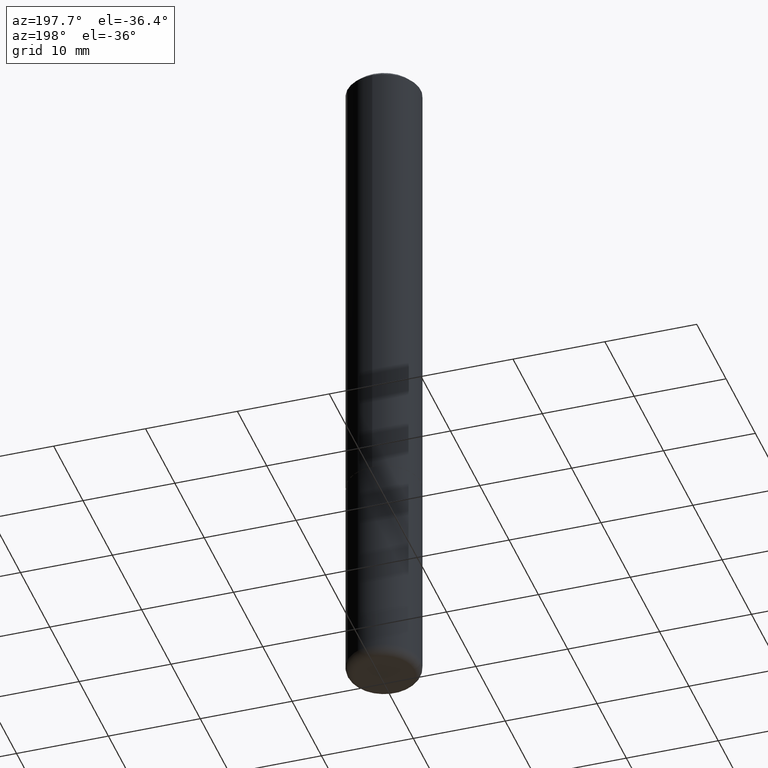
[diagram: clean part render]
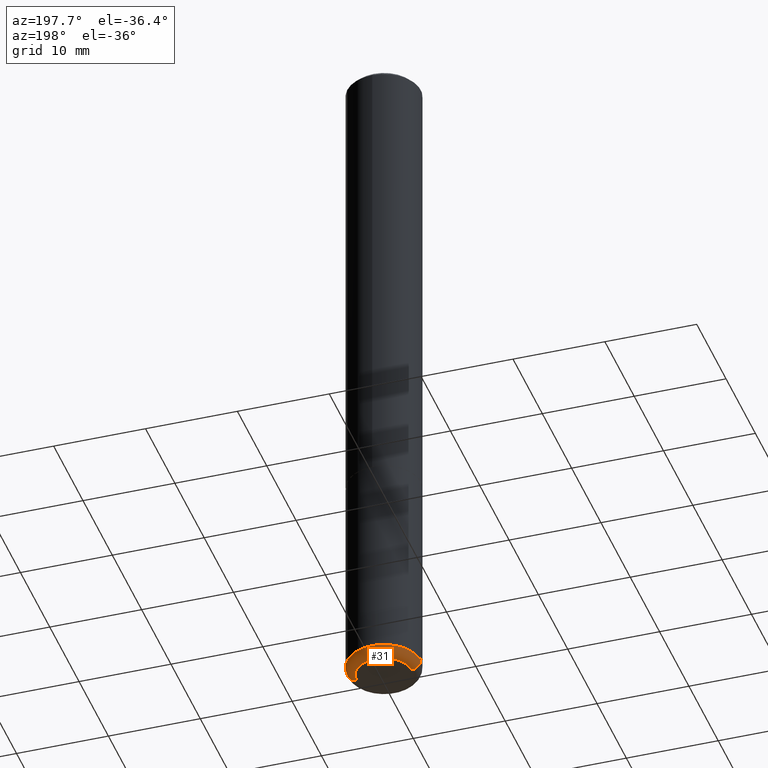
[diagram: same view with one face highlighted and labeled with its STEP entity id]
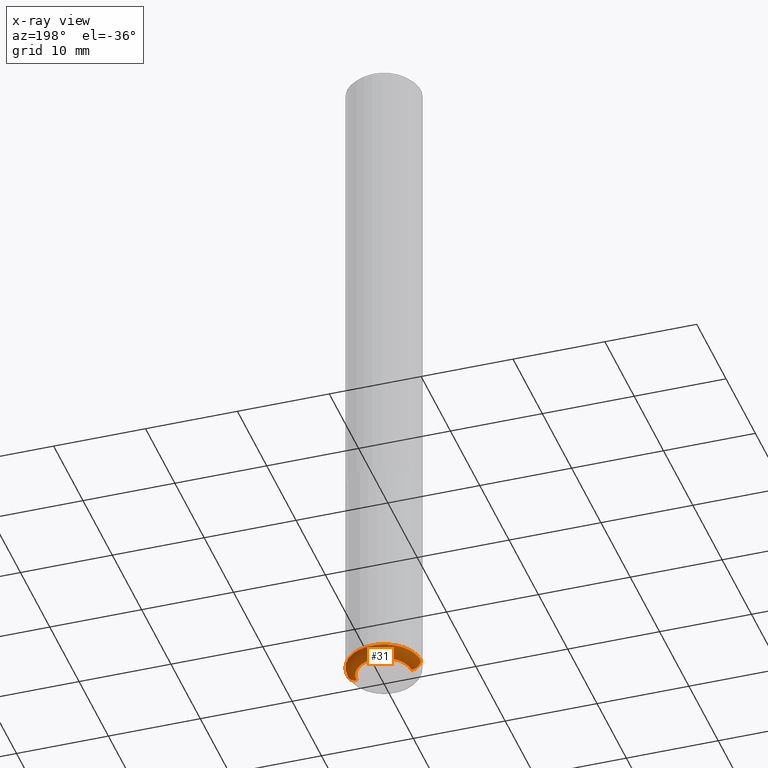
[diagram: x-ray of the same camera — body ghosted, the highlighted face saturated]
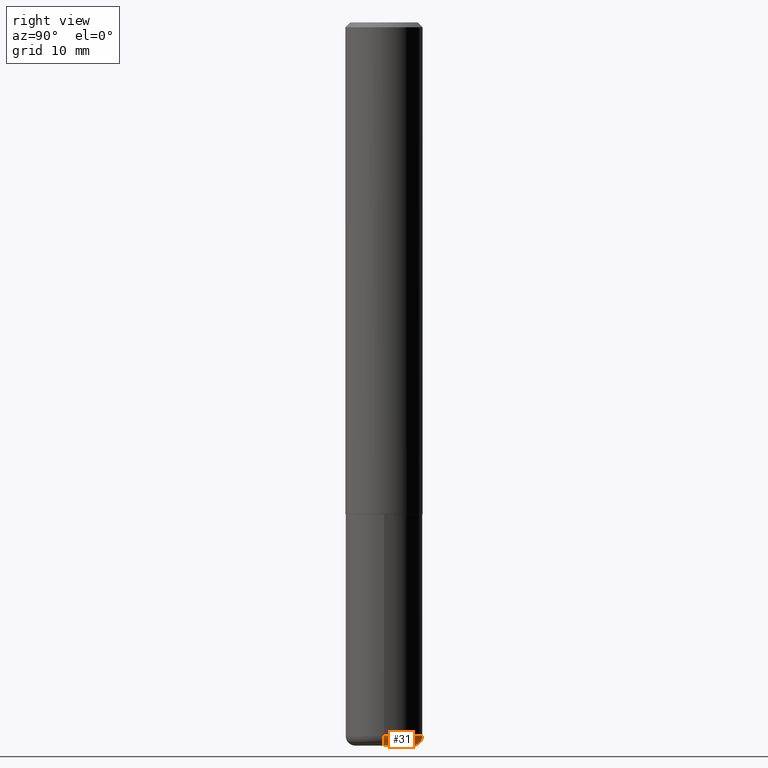
[diagram: same view with one face highlighted and labeled with its STEP entity id]
A machine part, auxiliary view. The second image highlights one B-rep face of the part: STEP entity #31.
The next image is the same camera in x-ray: the body ghosted, the highlighted face saturated — about 0% of this face is hidden behind the body in this view.
A second angle (right view) of the same face is appended — the face is thin or edge-on in the first view.
In plain terms, the highlighted toroidal blend (fillet) surface has major radius 2.9997 mm and minor (blend) radius 1.0008 mm.
Its self-contained STEP definition (entity closure, byte-faithful):
#2 = AXIS2_PLACEMENT_3D ( 'NONE', #190, #261, #220 ) ;
#6 = CARTESIAN_POINT ( 'NONE',  ( -0.1575000000000000289, -9.052976923763463288E-15, -2.913399999999999768 ) ) ;
#7 = VERTEX_POINT ( 'NONE', #374 ) ;
#19 = AXIS2_PLACEMENT_3D ( 'NONE', #299, #77, #366 ) ;
#31 = ADVANCED_FACE ( 'NONE', ( #416 ), #227, .T. ) ;
#45 = EDGE_LOOP ( 'NONE', ( #192, #264, #96, #70 ) ) ;
#62 = VERTEX_POINT ( 'NONE', #6 ) ;
#63 = DIRECTION ( 'NONE',  ( 1.000000000000000000, -6.982962677686267499E-15, 0.000000000000000000 ) ) ;
#69 = EDGE_CURVE ( 'NONE', #7, #99, #378, .T. ) ;
#70 = ORIENTED_EDGE ( 'NONE', *, *, #130, .F. ) ;
#77 = DIRECTION ( 'NONE',  ( 7.105427357601001859E-15, 1.000000000000000000, -3.491481338843145583E-15 ) ) ;
#85 = CIRCLE ( 'NONE', #388, 0.03940000000000005997 ) ;
#92 = DIRECTION ( 'NONE',  ( 1.000000000000000000, -6.982962677686273021E-15, 0.000000000000000000 ) ) ;
#96 = ORIENTED_EDGE ( 'NONE', *, *, #140, .F. ) ;
#99 = VERTEX_POINT ( 'NONE', #176 ) ;
#121 = CARTESIAN_POINT ( 'NONE',  ( 0.1180999999999999966, -1.099676962482036915E-14, -2.913399999999999768 ) ) ;
#126 = CARTESIAN_POINT ( 'NONE',  ( 7.220980290903470182E-29, -1.030964609733603853E-14, -2.952799999999999869 ) ) ;
#130 = EDGE_CURVE ( 'NONE', #7, #368, #85, .T. ) ;
#140 = EDGE_CURVE ( 'NONE', #368, #62, #312, .T. ) ;
#166 = DIRECTION ( 'NONE',  ( -2.445468806185136597E-29, 3.491481338843145583E-15, 1.000000000000000000 ) ) ;
#172 = EDGE_CURVE ( 'NONE', #99, #62, #200, .T. ) ;
#176 = CARTESIAN_POINT ( 'NONE',  ( -0.1180999999999999966, -9.261736025083411415E-15, -2.952799999999999869 ) ) ;
#186 = AXIS2_PLACEMENT_3D ( 'NONE', #194, #166, #400 ) ;
#190 = CARTESIAN_POINT ( 'NONE',  ( 7.124628819939776708E-29, -1.017208173258561931E-14, -2.913399999999999768 ) ) ;
#191 = DIRECTION ( 'NONE',  ( -2.445468806185136597E-29, 3.491481338843145583E-15, 1.000000000000000000 ) ) ;
#192 = ORIENTED_EDGE ( 'NONE', *, *, #69, .T. ) ;
#193 = AXIS2_PLACEMENT_3D ( 'NONE', #126, #191, #92 ) ;
#194 = CARTESIAN_POINT ( 'NONE',  ( 7.124628819939776708E-29, -1.017208173258561931E-14, -2.913399999999999768 ) ) ;
#200 = CIRCLE ( 'NONE', #19, 0.03940000000000005997 ) ;
#220 = DIRECTION ( 'NONE',  ( 1.000000000000000000, -6.982962677686271444E-15, 4.883557194083114583E-29 ) ) ;
#227 = TOROIDAL_SURFACE ( 'NONE', #2, 0.1180999999999999966, 0.03940000000000005997 ) ;
#261 = DIRECTION ( 'NONE',  ( -2.445468806185136597E-29, 3.491481338843145583E-15, 1.000000000000000000 ) ) ;
#264 = ORIENTED_EDGE ( 'NONE', *, *, #172, .T. ) ;
#299 = CARTESIAN_POINT ( 'NONE',  ( -0.1180999999999999966, -9.332930761652941905E-15, -2.913399999999999768 ) ) ;
#312 = CIRCLE ( 'NONE', #186, 0.1575000000000000011 ) ;
#335 = CARTESIAN_POINT ( 'NONE',  ( 0.1575000000000000289, -1.127189835432120758E-14, -2.913399999999999768 ) ) ;
#351 = DIRECTION ( 'NONE',  ( -6.982962677686266711E-15, -1.000000000000000000, 3.491481338843145583E-15 ) ) ;
#366 = DIRECTION ( 'NONE',  ( -1.000000000000000000, 7.105427357601014480E-15, 0.000000000000000000 ) ) ;
#368 = VERTEX_POINT ( 'NONE', #335 ) ;
#374 = CARTESIAN_POINT ( 'NONE',  ( 0.1180999999999999966, -1.113433398957078679E-14, -2.952799999999999869 ) ) ;
#378 = CIRCLE ( 'NONE', #193, 0.1180999999999999966 ) ;
#388 = AXIS2_PLACEMENT_3D ( 'NONE', #121, #351, #63 ) ;
#400 = DIRECTION ( 'NONE',  ( 1.000000000000000000, -6.982962677686261977E-15, 0.000000000000000000 ) ) ;
#416 = FACE_OUTER_BOUND ( 'NONE', #45, .T. ) ;